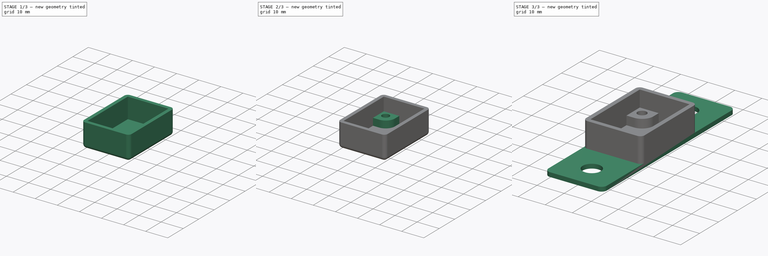
[diagram: build sequence overview — one tinted view per stage of 3, left to right]
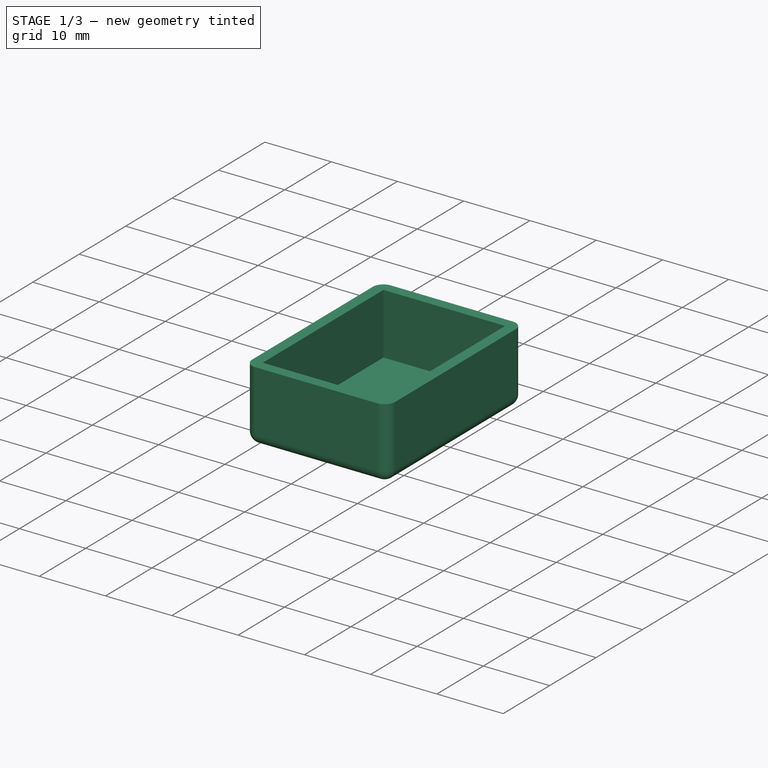
[diagram: stage 1 of 3 — iso view after this stage's code; geometry added in this stage tinted green]
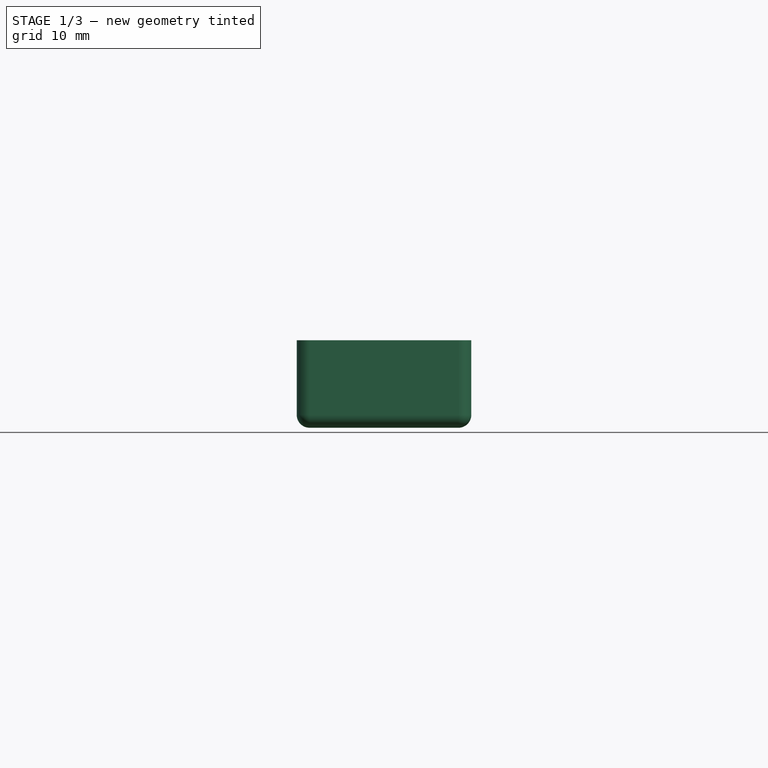
[diagram: stage 1 of 3 — front view after this stage's code; geometry added in this stage tinted green]
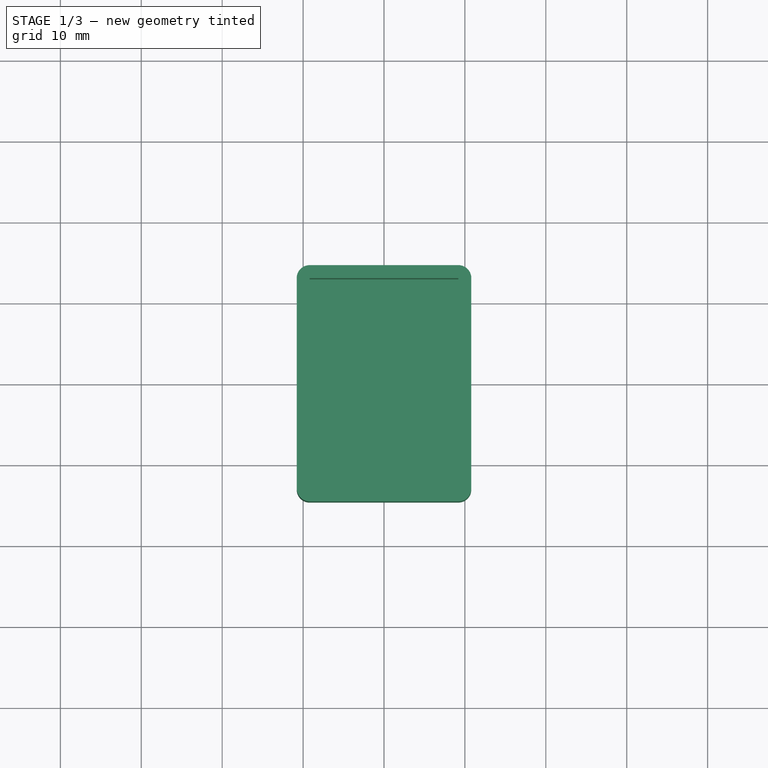
[diagram: stage 1 of 3 — top view after this stage's code; geometry added in this stage tinted green]
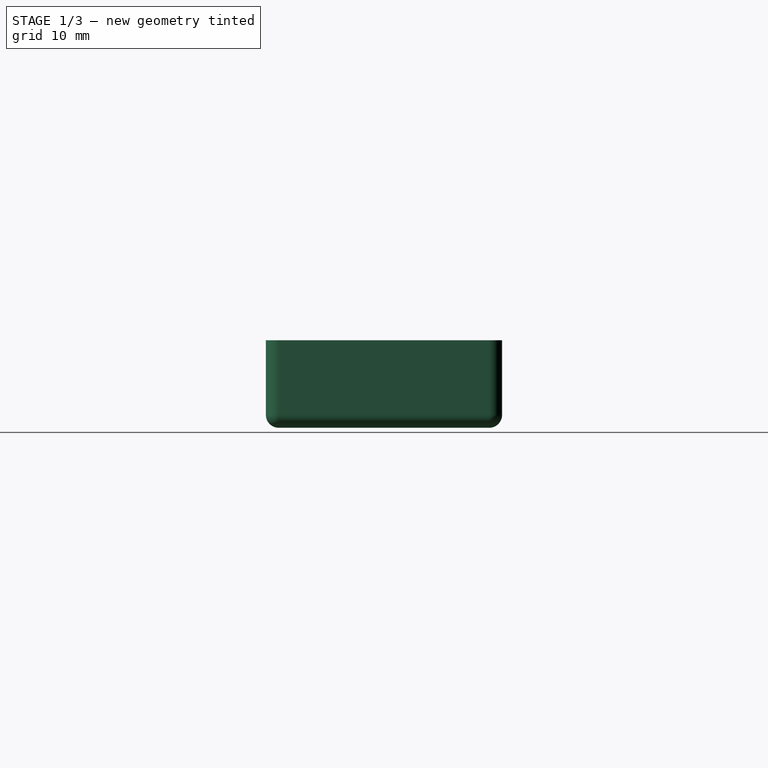
[diagram: stage 1 of 3 — right view after this stage's code; geometry added in this stage tinted green]
FCSTD DOCUMENT  (FreeCAD 1.0R39285 (Git))
Label: qt_5p_hub_enclosure
License: All rights reserved
LicenseURL: https://en.wikipedia.org/wiki/All_rights_reserved
objects: Sketcher::SketchObject×3, PartDesign::Pad×3, PartDesign::Mirrored×2, Spreadsheet::Sheet×1, PartDesign::Thickness×1, PartDesign::MultiTransform×1, PartDesign::Body×1
note: 25 computed .brp shape members not serialized (recipe doc carries the construction recipe); baked Part::Feature solids carry a one-line shape summary decoded from their .brp

FEATURE [Spreadsheet::Sheet] Spreadsheet
  cells = A2='Design Parameters; A3='hub_pcb_width; B3(hub_pcb_width)==0.7 in; A4='hub_pcb_length; B4(hub_pcb_length)==1 in; A5='hub_pcb_height; B5(hub_pcb_height)==6 mm; A6='hub_pcb_hole_spacing_widthwise; B6(hub_pcb_hole_spacing_widthwise)==0.5 in; A7='hub_pcb_hole_spacing_lengthwise; B7(hub_pcb_hole_spacing_lengthwise)==0.8 in; A8='hub_pcb_side_margin; B8(hub_pcb_side_margin)==0.3 mm; A9='hub_pcb_mount_insert_hole_diameter; B9(hub_pcb_mount_insert_hole_diameter)==0.1315 in; A10='hub_pcb_mount_insert_length; B10(hub_pcb_mount_insert_length)==0.115 in; A11='hub_pcb_mount_insert_length_margin; B11(hub_pcb_mount_insert_length_margin)==0.3 mm; A12='hub_pcb_mount_hole_boss_height; B12(hub_pcb_mount_hole_boss_height)==hub_pcb_mount_insert_length + hub_pcb_mount_insert_length_margin; A13='hub_pcb_mount_hole_boss_radius; B13(hub_pcb_mount_hole_boss_radius)==0.5 * 2.5 * hub_pcb_mount_insert_hole_diameter; A15='enclosure_wall_thickness; B15(enclosure_wall_thickness)==1.6 mm; A16='enclosure_inner_width; B16(enclosure_inner_width)==hub_pcb_width + 2 * hub_pcb_side_margin; A17='enclosure_inner_length; B17(enclosure_inner_length)==hub_pcb_length + 2 * hub_pcb_side_margin; A18='enclosure_inner_height; B18(enclosure_inner_height)==hub_pcb_mount_hole_boss_height + hub_pcb_height; A19='enclosure_fillet_radius; B19(enclosure_fillet_radius)==2 mm; A21='mount_flange_hole_spacing; B21(mount_flange_hole_spacing)==2 in; A22='mount_flange_hole_diameter; B22(mount_flange_hole_diameter)==0.266 in; A23='mount_flange_washer_diameter; B23(mount_flange_washer_diameter)==0.625 in; A24='mount_flange_washer_margin; B24(mount_flange_washer_margin)==1.5 mm; A25='mount_flange_width; B25(mount_flange_width)==enclosure_inner_width + 2 * enclosure_wall_thickness; A26='mount_flange_length; B26(mount_flange_length)==mount_flange_hole_spacing + mount_flange_washer_diameter + 2 * mount_flange_washer_margin; A27='mount_flange_thickness; B27(mount_flange_thickness)==enclosure_wall_thickness; A28='mount_flange_fillet_radius; B28(mount_flange_fillet_radius)==2 mm
FEATURE [Sketcher::SketchObject] Sketch  label="BaseSketch"
  ArcFitTolerance = 1e-06
  AttachmentSupport = -> [XY_Plane]
  FullyConstrained = true
  MakeInternals = false
  MapMode = 5
  expr: Constraints[10] = Spreadsheet.enclosure_inner_width
  expr: Constraints[11] = Spreadsheet.enclosure_inner_length
  sketch-geometry (5):
    g0: LineSegment StartX=-9.19 StartY=13 StartZ=0 EndX=-9.19 EndY=-13 EndZ=0
    g1: LineSegment StartX=-9.19 StartY=-13 StartZ=0 EndX=9.19 EndY=-13 EndZ=0
    g2: LineSegment StartX=9.19 StartY=-13 StartZ=0 EndX=9.19 EndY=13 EndZ=0
    g3: LineSegment StartX=9.19 StartY=13 StartZ=0 EndX=-9.19 EndY=13 EndZ=0
    g4: GeomPoint [constr] X=0 Y=0 Z=0
  constraints (12):
    c: Coincident(g0,g1)
    c: Coincident(g1,g2)
    c: Coincident(g2,g3)
    c: Coincident(g3,g0)
    c: Vertical(g0)
    c: Vertical(g2)
    c: Horizontal(g1)
    c: Horizontal(g3)
    c: Symmetric(g2,g0,g4)
    c: Coincident(g4,g-1)
    c: DistanceX(g1,g1) = 18.38
    c: DistanceY(g2,g2) = 26
FEATURE [PartDesign::Pad] Pad  label="BasePad"
  Direction = (0,0,1)
  Length = 9.221
  Length2 = 10
  Profile = -> Sketch
  ReferenceAxis = -> Sketch [N_Axis]
  Refine = true
  Suppressed = false
  Type = 0
  expr: Length = Spreadsheet.enclosure_inner_height
FEATURE [PartDesign::Thickness] Thickness  label="BasePadThickness"
  Base = -> Pad [Face6]
  BaseFeature = -> Pad
  Intersection = false
  Join = 0
  Mode = 0
  Refine = true
  SupportTransform = false
  Suppressed = false
  Value = 1.6
  expr: Value = Spreadsheet.enclosure_wall_thickness
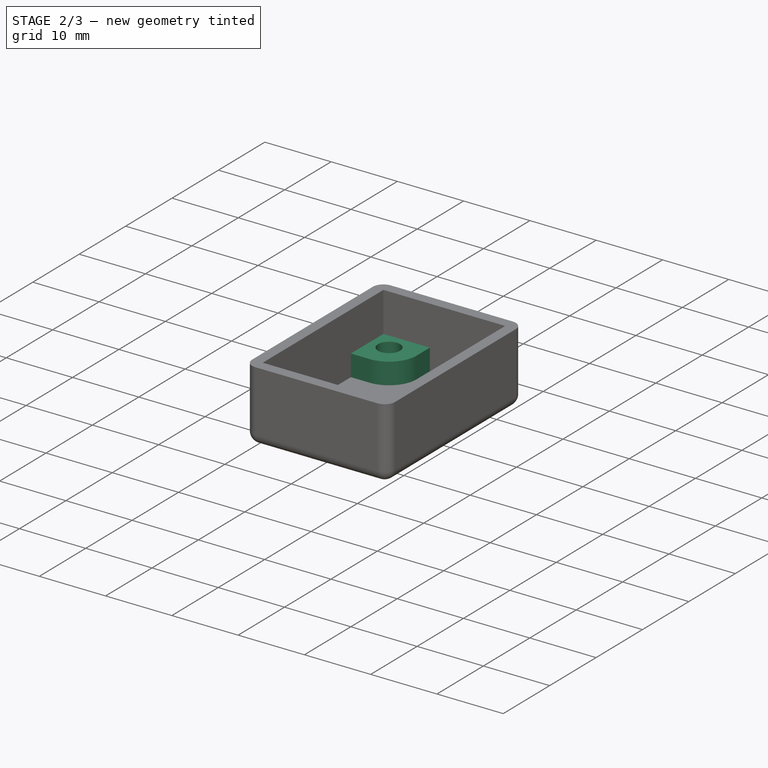
[diagram: stage 2 of 3 — iso view after this stage's code; geometry added in this stage tinted green]
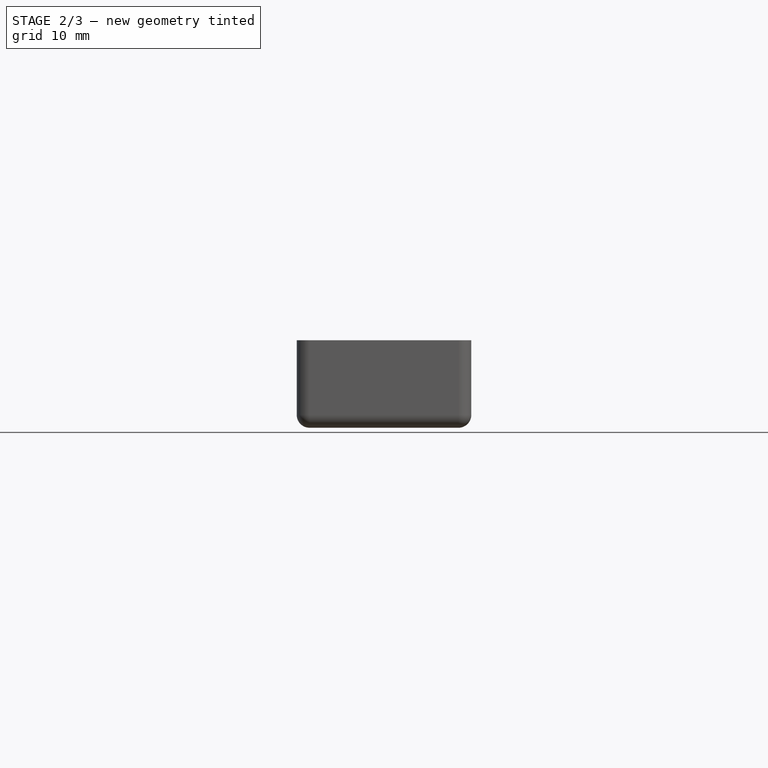
[diagram: stage 2 of 3 — front view after this stage's code; geometry added in this stage tinted green]
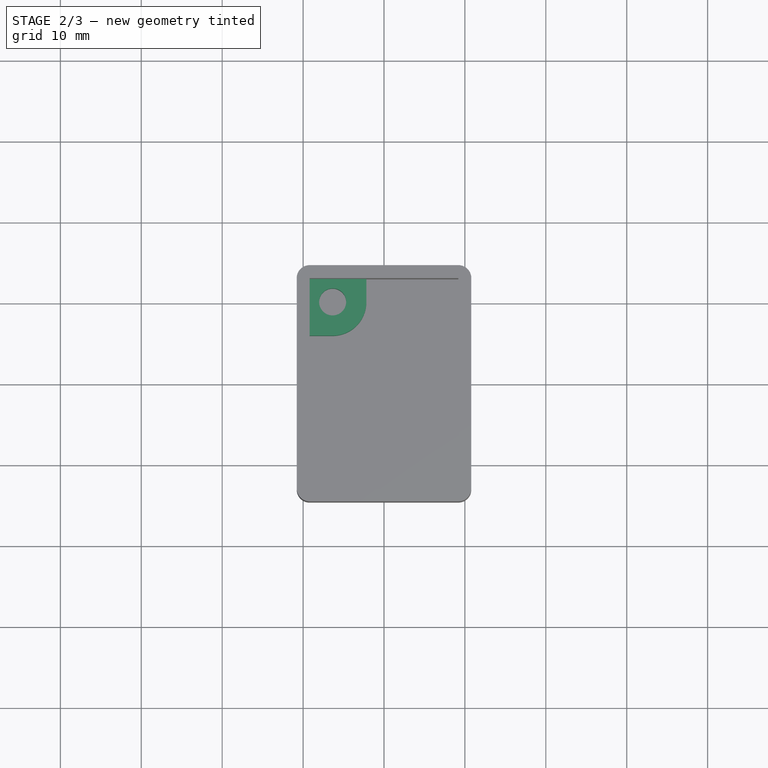
[diagram: stage 2 of 3 — top view after this stage's code; geometry added in this stage tinted green]
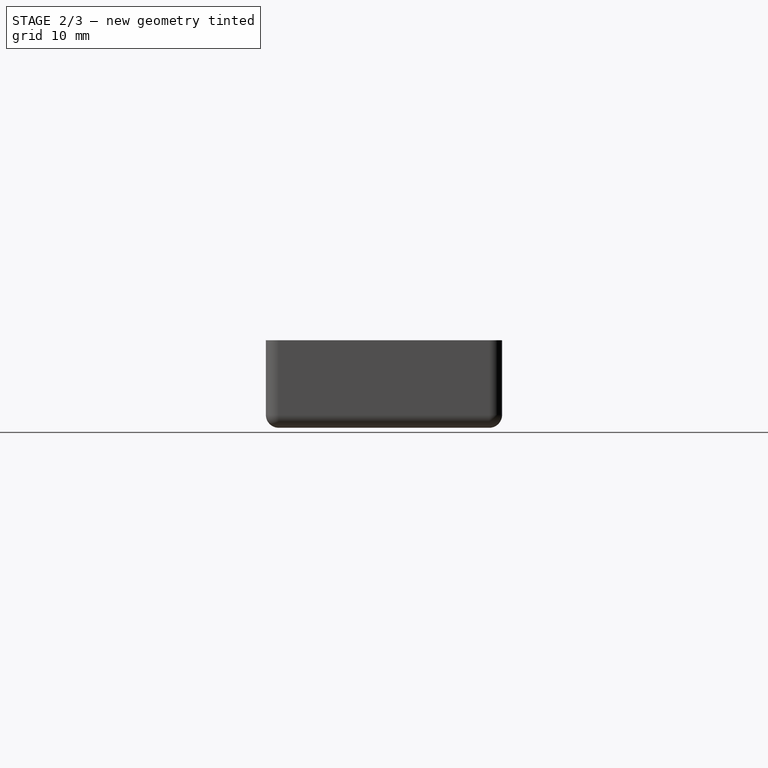
[diagram: stage 2 of 3 — right view after this stage's code; geometry added in this stage tinted green]
FEATURE [Sketcher::SketchObject] Sketch001  label="MountHoleBossSketch"
  ArcFitTolerance = 1e-06
  AttachmentSupport = -> [XY_Plane]
  FullyConstrained = true
  MakeInternals = false
  MapMode = 5
  expr: Constraints[10] = Spreadsheet.hub_pcb_hole_spacing_lengthwise
  expr: Constraints[11] = Spreadsheet.hub_pcb_hole_spacing_widthwise
  expr: Constraints[22] = Spreadsheet.enclosure_inner_width
  expr: Constraints[23] = Spreadsheet.enclosure_inner_length
  expr: Constraints[36] = Spreadsheet.hub_pcb_mount_hole_boss_radius
  expr: Constraints[38] = Spreadsheet.hub_pcb_mount_insert_hole_diameter
  sketch-geometry (16):
    g0: LineSegment [constr] StartX=-6.35 StartY=10.16 StartZ=0 EndX=-6.35 EndY=-10.16 EndZ=0
    g1: LineSegment [constr] StartX=-6.35 StartY=-10.16 StartZ=0 EndX=6.35 EndY=-10.16 EndZ=0
    g2: LineSegment [constr] StartX=6.35 StartY=-10.16 StartZ=0 EndX=6.35 EndY=10.16 EndZ=0
    g3: LineSegment [constr] StartX=6.35 StartY=10.16 StartZ=0 EndX=-6.35 EndY=10.16 EndZ=0
    g4: GeomPoint [constr] X=0 Y=0 Z=0
    g5: LineSegment [constr] StartX=-9.19 StartY=13 StartZ=0 EndX=-9.19 EndY=-13 EndZ=0
    g6: LineSegment [constr] StartX=-9.19 StartY=-13 StartZ=0 EndX=9.19 EndY=-13 EndZ=0
    g7: LineSegment [constr] StartX=9.19 StartY=-13 StartZ=0 EndX=9.19 EndY=13 EndZ=0
    g8: LineSegment [constr] StartX=9.19 StartY=13 StartZ=0 EndX=-9.19 EndY=13 EndZ=0
    g9: GeomPoint [constr] X=0 Y=0 Z=0
    g10: ArcOfCircle CenterX=-6.35 CenterY=10.16 CenterZ=0 NormalX=0 NormalY=0 NormalZ=1 AngleXU=0 Radius=4.17513 StartAngle=4.71239 EndAngle=6.28319
    g11: LineSegment StartX=-6.35 StartY=5.98487 StartZ=0 EndX=-9.19 EndY=5.98487 EndZ=0
    g12: LineSegment StartX=-9.19 StartY=5.98487 StartZ=0 EndX=-9.19 EndY=13 EndZ=0
    g13: LineSegment StartX=-9.19 StartY=13 StartZ=0 EndX=-2.17487 EndY=13 EndZ=0
    g14: LineSegment StartX=-2.17487 StartY=13 StartZ=0 EndX=-2.17487 EndY=10.16 EndZ=0
    g15: Circle CenterX=-6.35 CenterY=10.16 CenterZ=0 NormalX=0 NormalY=0 NormalZ=1 AngleXU=0 Radius=1.67005
  constraints (39):
    c: Coincident(g0,g1)
    c: Coincident(g1,g2)
    c: Coincident(g2,g3)
    c: Coincident(g3,g0)
    c: Vertical(g0)
    c: Vertical(g2)
    c: Horizontal(g1)
    c: Horizontal(g3)
    c: Symmetric(g2,g0,g4)
    c: Coincident(g4,g-1)
    c: DistanceY(g2,g2) = 20.32
    c: DistanceX(g1,g1) = 12.7
    c: Coincident(g5,g6)
    c: Coincident(g6,g7)
    c: Coincident(g7,g8)
    c: Coincident(g8,g5)
    c: Vertical(g5)
    c: Vertical(g7)
    c: Horizontal(g6)
    c: Horizontal(g8)
    c: Symmetric(g7,g5,g9)
    c: Coincident(g9,g4)
    c: DistanceX(g6,g6) = 18.38
    c: DistanceY(g7,g7) = 26
    c: Coincident(g10,g0)
    c: PointOnObject(g10,g3)
    c: PointOnObject(g10,g0)
    c: Tangent(g10,g11) = 1.5708
    c: Coincident(g11,g12)
    c: Coincident(g12,g5)
    c: Vertical(g12)
    c: Coincident(g12,g13)
    c: PointOnObject(g13,g8)
    c: Coincident(g13,g14)
    c: Coincident(g14,g10)
    c: Vertical(g14)
    c: Radius(g10) = 4.17513
    c: Coincident(g15,g0)
    c: Diameter(g15) = 3.3401
FEATURE [PartDesign::Pad] Pad001  label="MountHoleBossPad"
  BaseFeature = -> Thickness
  Direction = (0,0,1)
  Length = 3.221
  Length2 = 10
  Profile = -> Sketch001
  ReferenceAxis = -> Sketch001 [N_Axis]
  Refine = true
  Suppressed = false
  Type = 0
  expr: Length = Spreadsheet.hub_pcb_mount_hole_boss_height
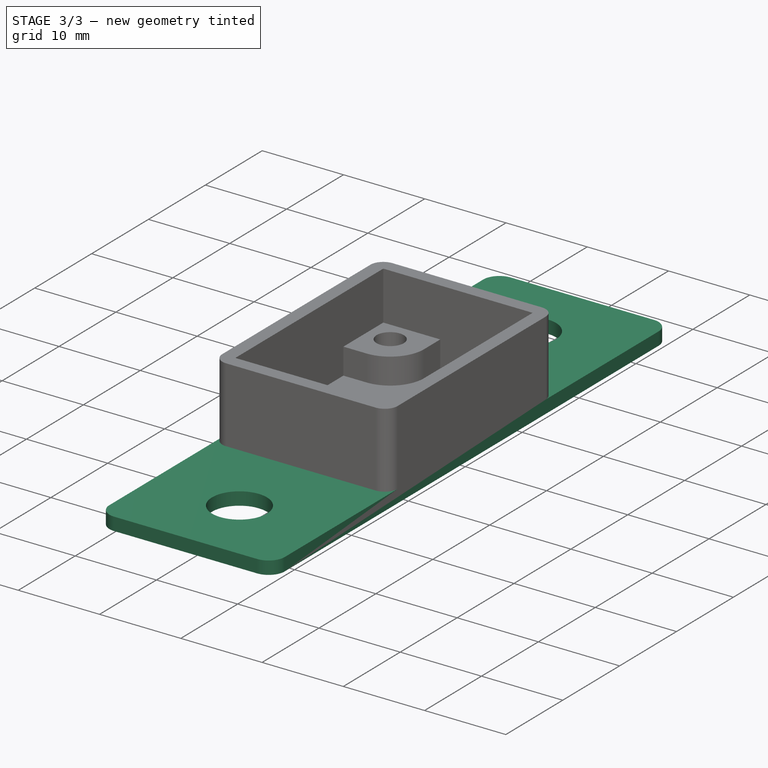
[diagram: stage 3 of 3 — iso view after this stage's code; geometry added in this stage tinted green]
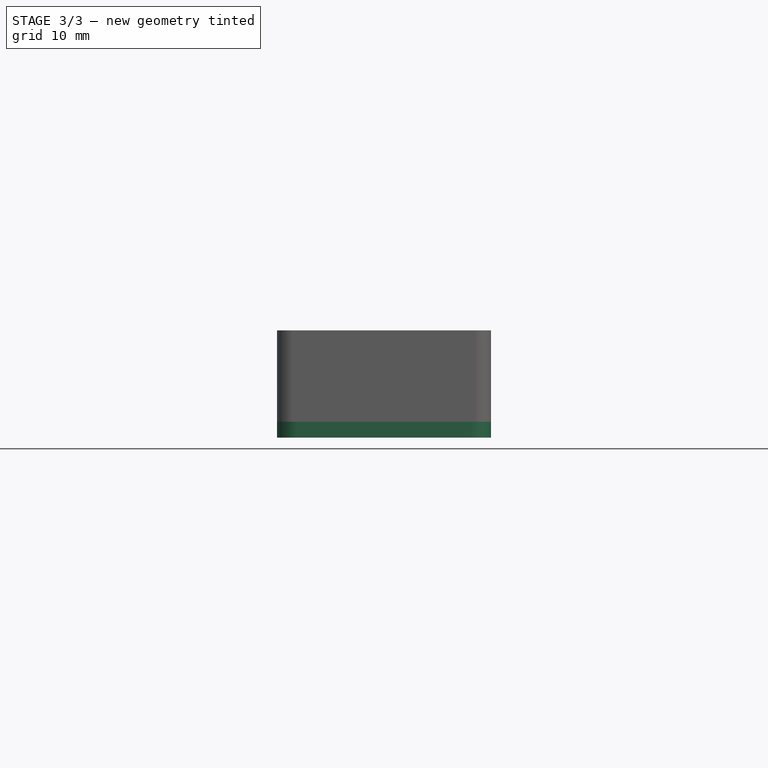
[diagram: stage 3 of 3 — front view after this stage's code; geometry added in this stage tinted green]
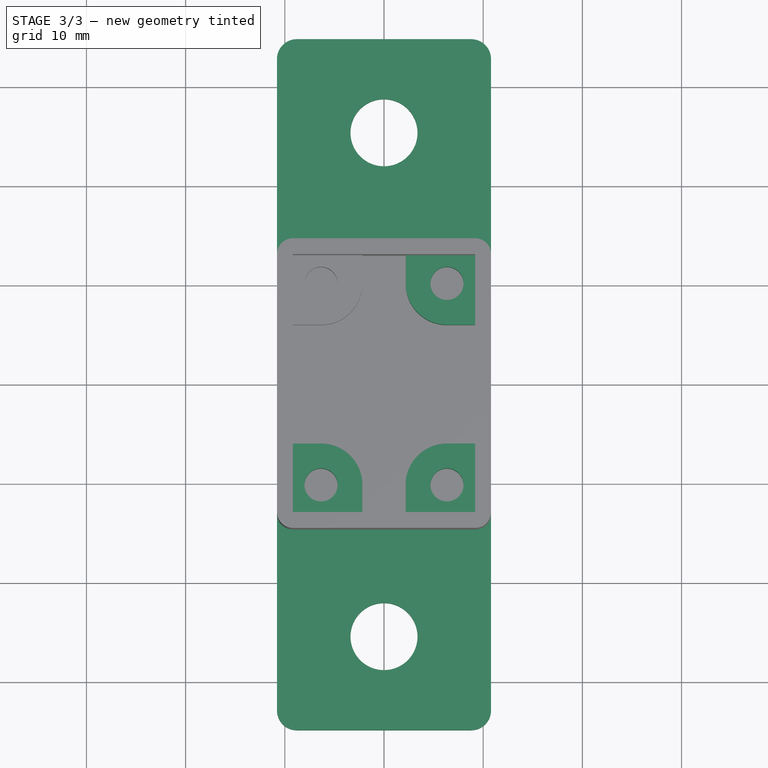
[diagram: stage 3 of 3 — top view after this stage's code; geometry added in this stage tinted green]
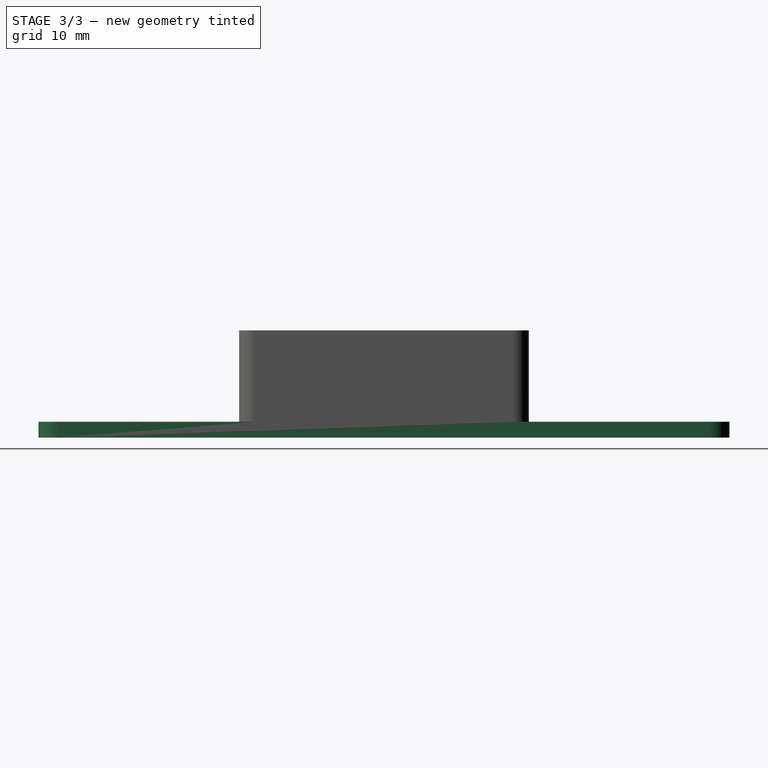
[diagram: stage 3 of 3 — right view after this stage's code; geometry added in this stage tinted green]
FEATURE [PartDesign::Mirrored] Mirrored
  MirrorPlane = -> YZ_Plane
  Refine = true
  Suppressed = false
  TransformMode = 0
FEATURE [PartDesign::Mirrored] Mirrored001
  MirrorPlane = -> XZ_Plane
  Refine = true
  Suppressed = false
  TransformMode = 0
FEATURE [PartDesign::MultiTransform] MultiTransform  label="MountHoleBossMultiTransform"
  BaseFeature = -> Pad001
  Originals = -> [Pad001]
  Refine = true
  Suppressed = false
  TransformMode = 0
  Transformations = -> [Mirrored,Mirrored001]
FEATURE [Sketcher::SketchObject] Sketch002  label="MountFlangeSketch"
  ArcFitTolerance = 1e-06
  AttachmentSupport = -> [XY_Plane]
  FullyConstrained = true
  MakeInternals = false
  MapMode = 5
  expr: Constraints[19] = Spreadsheet.mount_flange_fillet_radius
  expr: Constraints[21] = Spreadsheet.mount_flange_width
  expr: Constraints[22] = Spreadsheet.mount_flange_length
  expr: Constraints[25] = Spreadsheet.mount_flange_hole_spacing
  expr: Constraints[29] = Spreadsheet.mount_flange_hole_diameter
  sketch-geometry (13):
    g0: LineSegment StartX=-10.79 StartY=32.8375 StartZ=0 EndX=-10.79 EndY=-32.8375 EndZ=0
    g1: LineSegment StartX=-8.79 StartY=-34.8375 StartZ=0 EndX=8.79 EndY=-34.8375 EndZ=0
    g2: LineSegment StartX=10.79 StartY=-32.8375 StartZ=0 EndX=10.79 EndY=32.8375 EndZ=0
    g3: LineSegment StartX=8.79 StartY=34.8375 StartZ=0 EndX=-8.79 EndY=34.8375 EndZ=0
    g4: ArcOfCircle CenterX=-8.79 CenterY=32.8375 CenterZ=0 NormalX=0 NormalY=0 NormalZ=1 AngleXU=0 Radius=2 StartAngle=1.5708 EndAngle=3.14159
    g5: ArcOfCircle CenterX=-8.79 CenterY=-32.8375 CenterZ=0 NormalX=0 NormalY=0 NormalZ=1 AngleXU=0 Radius=2 StartAngle=3.14159 EndAngle=4.71239
    g6: ArcOfCircle CenterX=8.79 CenterY=-32.8375 CenterZ=0 NormalX=0 NormalY=0 NormalZ=1 AngleXU=0 Radius=2 StartAngle=4.71239 EndAngle=6.28319
    g7: ArcOfCircle CenterX=8.79 CenterY=32.8375 CenterZ=0 NormalX=0 NormalY=0 NormalZ=1 AngleXU=0 Radius=2 StartAngle=2.183e-12 EndAngle=1.5708
    g8: GeomPoint [constr] X=-10.79 Y=34.8375 Z=0
    g9: GeomPoint [constr] X=10.79 Y=-34.8375 Z=0
    g10: LineSegment [constr] StartX=0 StartY=25.4 StartZ=0 EndX=0 EndY=-25.4 EndZ=0
    g11: Circle CenterX=0 CenterY=25.4 CenterZ=0 NormalX=0 NormalY=0 NormalZ=1 AngleXU=0 Radius=3.3782
    g12: Circle CenterX=0 CenterY=-25.4 CenterZ=0 NormalX=0 NormalY=0 NormalZ=1 AngleXU=0 Radius=3.3782
  constraints (30):
    c: Tangent(g0,g4) = -1.5708
    c: Tangent(g0,g5) = -1.5708
    c: Tangent(g1,g5) = -1.5708
    c: Tangent(g1,g6) = -1.5708
    c: Tangent(g2,g6) = -1.5708
    c: Tangent(g2,g7) = -1.5708
    c: Tangent(g3,g7) = -1.5708
    c: Tangent(g3,g4) = -1.5708
    c: Vertical(g0)
    c: Vertical(g2)
    c: Horizontal(g1)
    c: Horizontal(g3)
    c: Equal(g4,g5)
    c: Equal(g5,g6)
    c: Equal(g6,g7)
    c: PointOnObject(g8,g0)
    c: PointOnObject(g8,g3)
    c: PointOnObject(g9,g1)
    c: PointOnObject(g9,g2)
    c: Radius(g5) = 2
    c: Symmetric(g4,g6,g-1)
    c: DistanceX(g0,g2) = 21.58
    c: DistanceY(g1,g3) = 69.675
    c: Vertical(g10)
    c: Symmetric(g10,g10,g-1)
    c: DistanceY(g10,g10) = 50.8
    c: Coincident(g11,g10)
    c: Coincident(g12,g10)
    c: Equal(g12,g11)
    c: Diameter(g11) = 6.7564
FEATURE [PartDesign::Pad] Pad002  label="MountFlangePad"
  BaseFeature = -> MultiTransform
  Direction = (0,0,1)
  Length = 1.6
  Length2 = 10
  Profile = -> Sketch002
  ReferenceAxis = -> Sketch002 [N_Axis]
  Refine = true
  Reversed = true
  Suppressed = false
  Type = 0
  expr: Length = Spreadsheet.mount_flange_thickness
FEATURE [PartDesign::Body] Body
  AllowCompound = false
  Group = -> [Sketch,Pad,Thickness,Sketch001,Pad001,MultiTransform,Mirrored,Mirrored001,Sketch002,Pad002]
  Origin = -> Origin
  Tip = -> Pad002
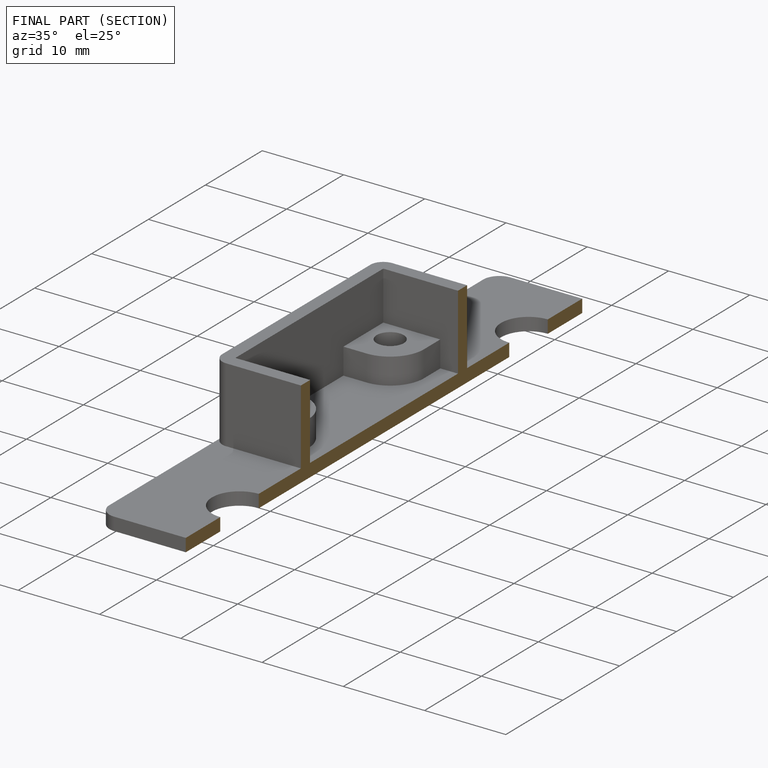
[diagram: finished part — half-section view (interior)]
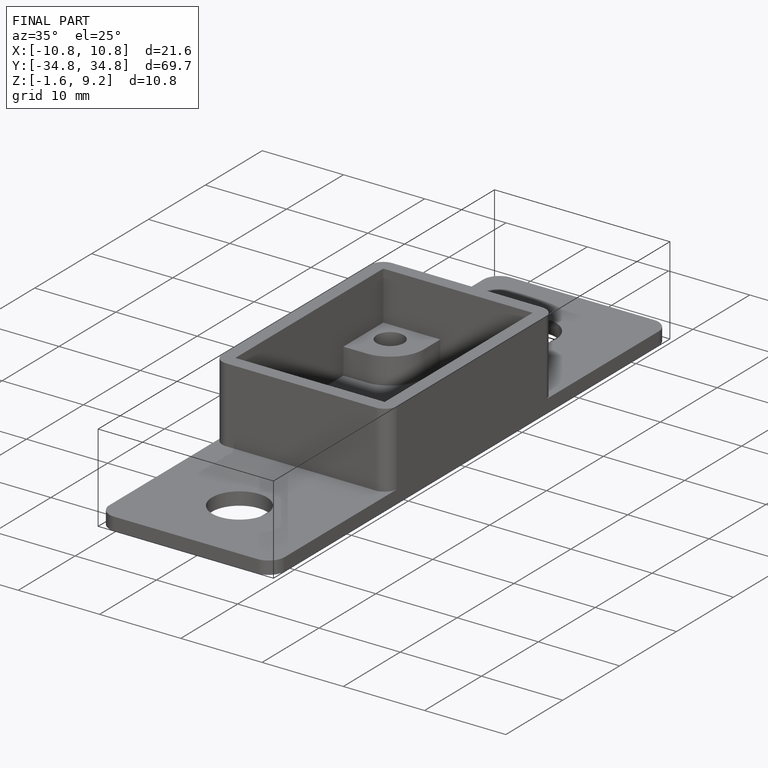
[diagram: finished part — iso view with bounding-box wireframe]
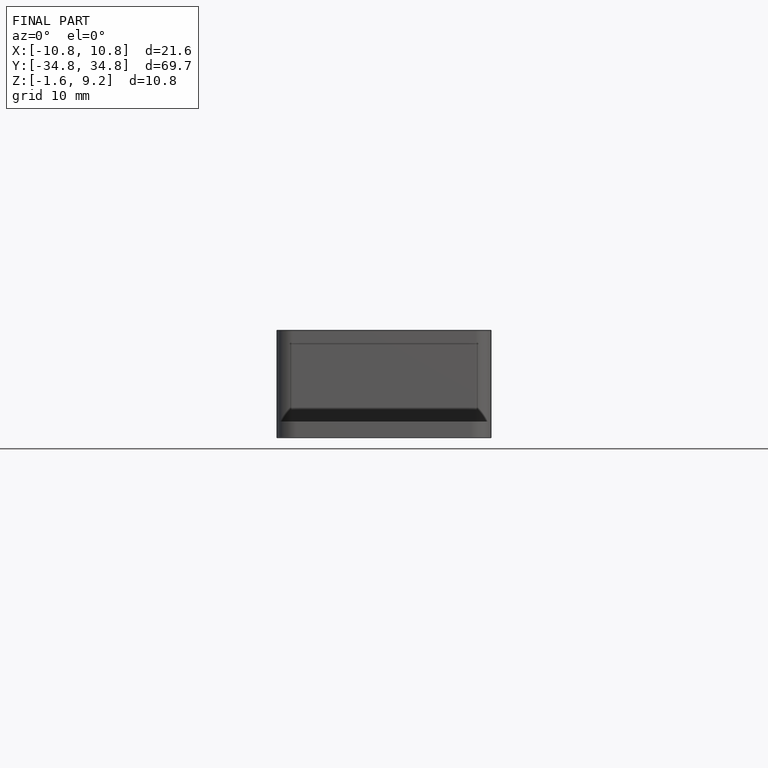
[diagram: finished part — front view with bounding-box wireframe]
